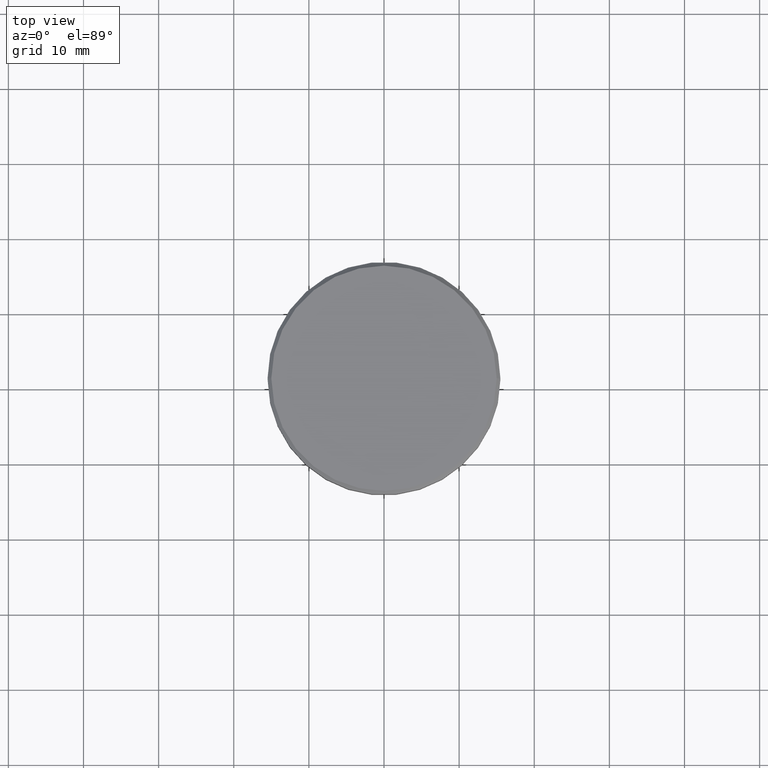
[diagram: clean part render]
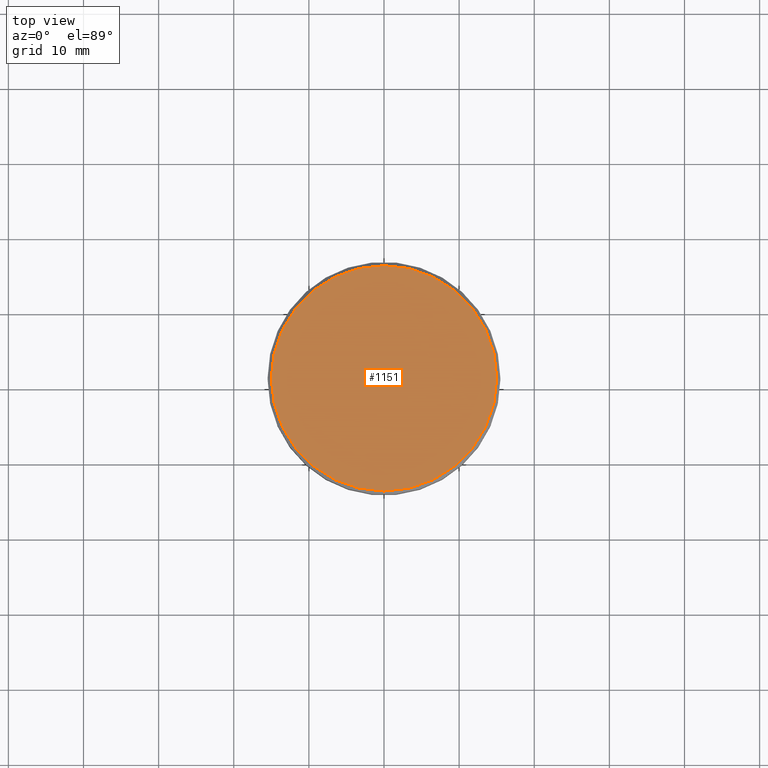
[diagram: same view with one face highlighted and labeled with its STEP entity id]
A machine part, top view. The second image highlights one B-rep face of the part: STEP entity #1151.
In plain terms, the highlighted planar face has unit normal (0, -0, 1).
Its self-contained STEP definition (entity closure, byte-faithful):
#36 = DIRECTION ( 'NONE',  ( 0.000000000000000000, -0.000000000000000000, 1.000000000000000000 ) ) ;
#131 = PLANE ( 'NONE',  #357 ) ;
#254 = DIRECTION ( 'NONE',  ( -0.000000000000000000, -0.000000000000000000, 1.000000000000000000 ) ) ;
#357 = AXIS2_PLACEMENT_3D ( 'NONE', #858, #36, #611 ) ;
#403 = CIRCLE ( 'NONE', #1172, 15.00000000000000000 ) ;
#422 = DIRECTION ( 'NONE',  ( 1.000000000000000000, 0.000000000000000000, 0.000000000000000000 ) ) ;
#484 = CARTESIAN_POINT ( 'NONE',  ( 15.00000000000000000, 1.867586368699713376E-15, 0.000000000000000000 ) ) ;
#523 = CIRCLE ( 'NONE', #835, 15.00000000000000000 ) ;
#611 = DIRECTION ( 'NONE',  ( 1.000000000000000000, 0.000000000000000000, 0.000000000000000000 ) ) ;
#678 = EDGE_CURVE ( 'NONE', #1044, #703, #523, .T. ) ;
#703 = VERTEX_POINT ( 'NONE', #851 ) ;
#765 = CARTESIAN_POINT ( 'NONE',  ( 0.000000000000000000, 0.000000000000000000, 0.000000000000000000 ) ) ;
#819 = CARTESIAN_POINT ( 'NONE',  ( 0.000000000000000000, 0.000000000000000000, 0.000000000000000000 ) ) ;
#835 = AXIS2_PLACEMENT_3D ( 'NONE', #765, #254, #1032 ) ;
#851 = CARTESIAN_POINT ( 'NONE',  ( -15.00000000000000000, 0.000000000000000000, 0.000000000000000000 ) ) ;
#858 = CARTESIAN_POINT ( 'NONE',  ( 0.000000000000000000, 0.000000000000000000, 0.000000000000000000 ) ) ;
#864 = ORIENTED_EDGE ( 'NONE', *, *, #678, .T. ) ;
#993 = DIRECTION ( 'NONE',  ( -0.000000000000000000, -0.000000000000000000, 1.000000000000000000 ) ) ;
#1032 = DIRECTION ( 'NONE',  ( 1.000000000000000000, 0.000000000000000000, 0.000000000000000000 ) ) ;
#1044 = VERTEX_POINT ( 'NONE', #484 ) ;
#1048 = ORIENTED_EDGE ( 'NONE', *, *, #1173, .T. ) ;
#1079 = EDGE_LOOP ( 'NONE', ( #1048, #864 ) ) ;
#1124 = FACE_OUTER_BOUND ( 'NONE', #1079, .T. ) ;
#1151 = ADVANCED_FACE ( 'NONE', ( #1124 ), #131, .T. ) ;
#1172 = AXIS2_PLACEMENT_3D ( 'NONE', #819, #993, #422 ) ;
#1173 = EDGE_CURVE ( 'NONE', #703, #1044, #403, .T. ) ;